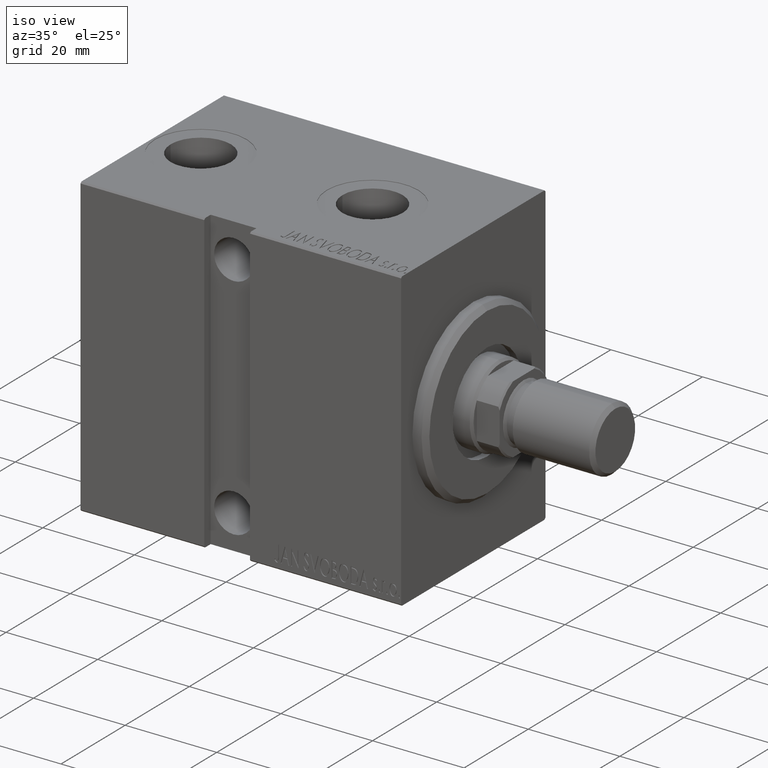
[diagram: clean part render]
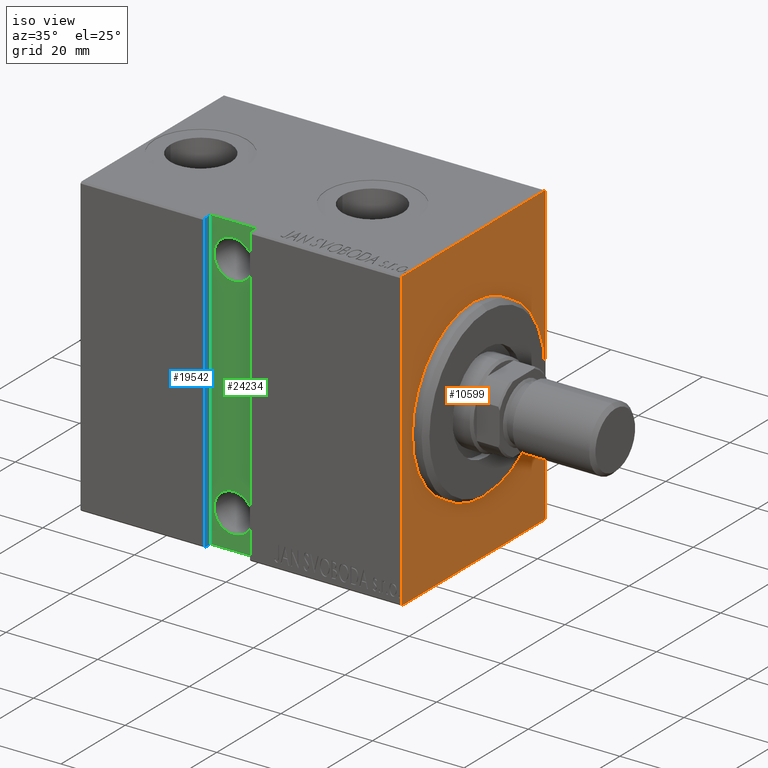
[diagram: same view with three faces highlighted in distinct colors, each labeled with its STEP entity id]
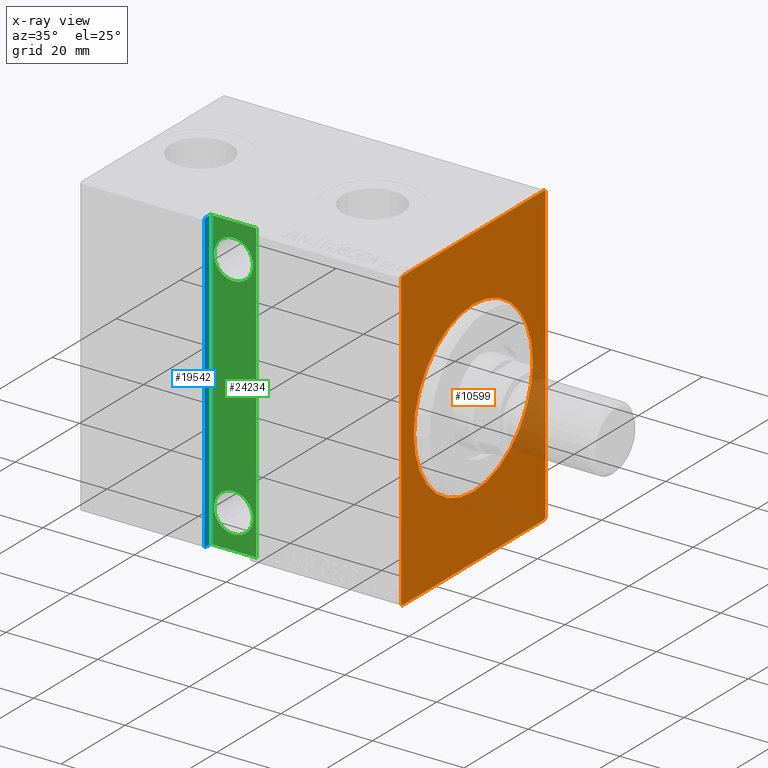
[diagram: x-ray of the same camera — body ghosted, the three highlighted faces saturated]
A machine part, iso view with three faces highlighted in distinct colors.
The next image is the same camera in x-ray (body ghosted, the three faces saturated) — at least one of them is partly hidden behind the body in this view.
Their STEP definitions:

[orange] entity #10599 — the highlighted planar face has unit normal (-1, 0, 0).
#201 = ORIENTED_EDGE ( 'NONE', *, *, #27090, .T. ) ;
#359 = EDGE_CURVE ( 'NONE', #29582, #11606, #31198, .T. ) ;
#487 = LINE ( 'NONE', #928, #33665 ) ;
#928 = CARTESIAN_POINT ( 'NONE',  ( 0.000000000000000000, 22.19999999999999929, 32.50000000000000711 ) ) ;
#1249 = CARTESIAN_POINT ( 'NONE',  ( 0.000000000000000000, -22.49999999999999645, 32.50000000000000000 ) ) ;
#2605 = DIRECTION ( 'NONE',  ( 1.000000000000000000, 0.000000000000000000, 0.000000000000000000 ) ) ;
#2924 = CARTESIAN_POINT ( 'NONE',  ( 0.000000000000000000, -22.19999999999999929, -32.50000000000000000 ) ) ;
#3171 = VECTOR ( 'NONE', #44215, 1000.000000000000000 ) ;
#4857 = LINE ( 'NONE', #1249, #43056 ) ;
#5313 = DIRECTION ( 'NONE',  ( 0.000000000000000000, 0.000000000000000000, -1.000000000000000000 ) ) ;
#5396 = DIRECTION ( 'NONE',  ( 0.000000000000000000, -1.000000000000000000, -1.541976423090495633E-16 ) ) ;
#5434 = EDGE_LOOP ( 'NONE', ( #32745, #20996 ) ) ;
#5547 = ORIENTED_EDGE ( 'NONE', *, *, #6178, .F. ) ;
#5917 = VERTEX_POINT ( 'NONE', #12224 ) ;
#6178 = EDGE_CURVE ( 'NONE', #38260, #32791, #29055, .T. ) ;
#8264 = ORIENTED_EDGE ( 'NONE', *, *, #24625, .F. ) ;
#8919 = CARTESIAN_POINT ( 'NONE',  ( 0.000000000000000000, 0.000000000000000000, 0.000000000000000000 ) ) ;
#9266 = CARTESIAN_POINT ( 'NONE',  ( 0.000000000000000000, 0.000000000000000000, 0.000000000000000000 ) ) ;
#10379 = CARTESIAN_POINT ( 'NONE',  ( 0.000000000000000000, 0.000000000000000000, 0.000000000000000000 ) ) ;
#10599 = ADVANCED_FACE ( 'NONE', ( #26483, #36853 ), #12523, .F. ) ;
#11606 = VERTEX_POINT ( 'NONE', #20013 ) ;
#12224 = CARTESIAN_POINT ( 'NONE',  ( 0.000000000000000000, 2.265596578422603791E-15, -18.50000000000000355 ) ) ;
#12523 = PLANE ( 'NONE',  #16838 ) ;
#14251 = DIRECTION ( 'NONE',  ( -0.000000000000000000, 0.7071067811865393571, -0.7071067811865556774 ) ) ;
#14630 = CARTESIAN_POINT ( 'NONE',  ( 0.000000000000000000, -22.49999999999999645, 32.20000000000000284 ) ) ;
#14748 = EDGE_CURVE ( 'NONE', #5917, #44620, #21711, .T. ) ;
#16141 = ORIENTED_EDGE ( 'NONE', *, *, #35734, .T. ) ;
#16720 = VERTEX_POINT ( 'NONE', #26341 ) ;
#16838 = AXIS2_PLACEMENT_3D ( 'NONE', #8919, #2605, #5313 ) ;
#17338 = CARTESIAN_POINT ( 'NONE',  ( 0.000000000000000000, 22.50000000000000355, -32.19999999999999574 ) ) ;
#17647 = CARTESIAN_POINT ( 'NONE',  ( 0.000000000000000000, -22.19999999999999929, -32.50000000000000000 ) ) ;
#17689 = DIRECTION ( 'NONE',  ( 0.000000000000000000, -0.7071067811865474617, -0.7071067811865474617 ) ) ;
#17920 = EDGE_CURVE ( 'NONE', #35893, #16720, #25073, .T. ) ;
#19615 = CARTESIAN_POINT ( 'NONE',  ( 0.000000000000000000, 22.49999999999999645, 32.20000000000000284 ) ) ;
#20013 = CARTESIAN_POINT ( 'NONE',  ( 0.000000000000000000, 22.19999999999998153, -32.50000000000000000 ) ) ;
#20304 = EDGE_CURVE ( 'NONE', #44620, #5917, #23273, .T. ) ;
#20740 = DIRECTION ( 'NONE',  ( 0.000000000000000000, 0.000000000000000000, -1.000000000000000000 ) ) ;
#20996 = ORIENTED_EDGE ( 'NONE', *, *, #14748, .T. ) ;
#21711 = CIRCLE ( 'NONE', #36821, 18.50000000000000355 ) ;
#21963 = ORIENTED_EDGE ( 'NONE', *, *, #359, .T. ) ;
#23197 = LINE ( 'NONE', #44167, #35668 ) ;
#23273 = CIRCLE ( 'NONE', #44168, 18.50000000000000355 ) ;
#23673 = DIRECTION ( 'NONE',  ( 1.000000000000000000, 0.000000000000000000, 0.000000000000000000 ) ) ;
#23761 = CARTESIAN_POINT ( 'NONE',  ( 0.000000000000000000, 0.000000000000000000, 18.50000000000000355 ) ) ;
#24625 = EDGE_CURVE ( 'NONE', #35893, #11606, #37671, .T. ) ;
#25073 = LINE ( 'NONE', #17647, #43377 ) ;
#25366 = CARTESIAN_POINT ( 'NONE',  ( 0.000000000000000000, -22.19999999999998863, 32.50000000000000000 ) ) ;
#25502 = DIRECTION ( 'NONE',  ( -0.000000000000000000, -0.7071067811865474617, 0.7071067811865474617 ) ) ;
#26341 = CARTESIAN_POINT ( 'NONE',  ( 0.000000000000000000, -22.49999999999999645, -32.20000000000000284 ) ) ;
#26483 = FACE_BOUND ( 'NONE', #5434, .T. ) ;
#27090 = EDGE_CURVE ( 'NONE', #34431, #32791, #28145, .T. ) ;
#28145 = LINE ( 'NONE', #14630, #30567 ) ;
#29055 = LINE ( 'NONE', #42606, #43118 ) ;
#29534 = EDGE_CURVE ( 'NONE', #29582, #39632, #23197, .T. ) ;
#29582 = VERTEX_POINT ( 'NONE', #17338 ) ;
#30567 = VECTOR ( 'NONE', #38289, 1000.000000000000114 ) ;
#30765 = CARTESIAN_POINT ( 'NONE',  ( 0.000000000000000000, 22.19999999999999929, 32.50000000000000711 ) ) ;
#30898 = CARTESIAN_POINT ( 'NONE',  ( 0.000000000000000000, -22.49999999999999645, -32.50000000000000000 ) ) ;
#30970 = CARTESIAN_POINT ( 'NONE',  ( 0.000000000000000000, 22.50000000000000355, -32.19999999999999574 ) ) ;
#31198 = LINE ( 'NONE', #30970, #32805 ) ;
#32745 = ORIENTED_EDGE ( 'NONE', *, *, #20304, .T. ) ;
#32791 = VERTEX_POINT ( 'NONE', #25366 ) ;
#32805 = VECTOR ( 'NONE', #17689, 1000.000000000000114 ) ;
#33665 = VECTOR ( 'NONE', #14251, 1000.000000000000000 ) ;
#34431 = VERTEX_POINT ( 'NONE', #40884 ) ;
#35668 = VECTOR ( 'NONE', #40339, 1000.000000000000000 ) ;
#35734 = EDGE_CURVE ( 'NONE', #38260, #39632, #487, .T. ) ;
#35893 = VERTEX_POINT ( 'NONE', #2924 ) ;
#36821 = AXIS2_PLACEMENT_3D ( 'NONE', #10379, #23673, #20740 ) ;
#36836 = ORIENTED_EDGE ( 'NONE', *, *, #17920, .T. ) ;
#36853 = FACE_OUTER_BOUND ( 'NONE', #39697, .T. ) ;
#37671 = LINE ( 'NONE', #30898, #3171 ) ;
#38260 = VERTEX_POINT ( 'NONE', #30765 ) ;
#38289 = DIRECTION ( 'NONE',  ( -0.000000000000000000, 0.7071067811865474617, 0.7071067811865474617 ) ) ;
#39632 = VERTEX_POINT ( 'NONE', #19615 ) ;
#39697 = EDGE_LOOP ( 'NONE', ( #5547, #16141, #41524, #21963, #8264, #36836, #40064, #201 ) ) ;
#40064 = ORIENTED_EDGE ( 'NONE', *, *, #41229, .F. ) ;
#40339 = DIRECTION ( 'NONE',  ( 0.000000000000000000, -1.067522139062650425E-16, 1.000000000000000000 ) ) ;
#40884 = CARTESIAN_POINT ( 'NONE',  ( 0.000000000000000000, -22.49999999999999645, 32.20000000000000284 ) ) ;
#41229 = EDGE_CURVE ( 'NONE', #34431, #16720, #4857, .T. ) ;
#41524 = ORIENTED_EDGE ( 'NONE', *, *, #29534, .F. ) ;
#42606 = CARTESIAN_POINT ( 'NONE',  ( 0.000000000000000000, 22.49999999999999645, 32.50000000000000711 ) ) ;
#42936 = DIRECTION ( 'NONE',  ( 0.000000000000000000, 0.000000000000000000, -1.000000000000000000 ) ) ;
#43056 = VECTOR ( 'NONE', #42936, 1000.000000000000000 ) ;
#43118 = VECTOR ( 'NONE', #5396, 1000.000000000000000 ) ;
#43377 = VECTOR ( 'NONE', #25502, 1000.000000000000114 ) ;
#43967 = DIRECTION ( 'NONE',  ( 1.000000000000000000, 0.000000000000000000, 0.000000000000000000 ) ) ;
#44167 = CARTESIAN_POINT ( 'NONE',  ( 0.000000000000000000, 22.50000000000000355, -32.50000000000000000 ) ) ;
#44168 = AXIS2_PLACEMENT_3D ( 'NONE', #9266, #43967, #44418 ) ;
#44215 = DIRECTION ( 'NONE',  ( 0.000000000000000000, 1.000000000000000000, 0.000000000000000000 ) ) ;
#44418 = DIRECTION ( 'NONE',  ( 0.000000000000000000, 0.000000000000000000, -1.000000000000000000 ) ) ;
#44620 = VERTEX_POINT ( 'NONE', #23761 ) ;

[blue] entity #19542 — the highlighted planar face has unit normal (-1, 0, -0).
#980 = DIRECTION ( 'NONE',  ( 1.000000000000000000, 0.000000000000000000, -1.067522139062651164E-16 ) ) ;
#1187 = CARTESIAN_POINT ( 'NONE',  ( 43.00000000000000000, 22.19999999999999574, -32.50000000000000000 ) ) ;
#2451 = ORIENTED_EDGE ( 'NONE', *, *, #21827, .T. ) ;
#4180 = VECTOR ( 'NONE', #42928, 1000.000000000000114 ) ;
#4372 = FACE_OUTER_BOUND ( 'NONE', #29575, .T. ) ;
#4538 = VERTEX_POINT ( 'NONE', #23342 ) ;
#4584 = DIRECTION ( 'NONE',  ( -1.067522139062651164E-16, -0.000000000000000000, -1.000000000000000000 ) ) ;
#5823 = ORIENTED_EDGE ( 'NONE', *, *, #24443, .F. ) ;
#6940 = DIRECTION ( 'NONE',  ( -0.000000000000000000, 1.000000000000000000, -0.000000000000000000 ) ) ;
#7287 = VERTEX_POINT ( 'NONE', #9174 ) ;
#7713 = VERTEX_POINT ( 'NONE', #7974 ) ;
#7974 = CARTESIAN_POINT ( 'NONE',  ( 43.00000000000000711, 22.50000000000000000, 32.20000000000000284 ) ) ;
#8475 = DIRECTION ( 'NONE',  ( -0.000000000000000000, 1.000000000000000000, -0.000000000000000000 ) ) ;
#9058 = CARTESIAN_POINT ( 'NONE',  ( 43.00000000000000711, 20.49999999999999645, 32.49999999999995737 ) ) ;
#9174 = CARTESIAN_POINT ( 'NONE',  ( 43.00000000000000000, 22.50000000000000000, -32.19999999999999574 ) ) ;
#9265 = DIRECTION ( 'NONE',  ( -1.067522139062651164E-16, -0.000000000000000000, -1.000000000000000000 ) ) ;
#9335 = LINE ( 'NONE', #43143, #4180 ) ;
#11367 = LINE ( 'NONE', #38843, #32634 ) ;
#11632 = DIRECTION ( 'NONE',  ( -7.548521435979779371E-17, 0.7071067811865393571, -0.7071067811865556774 ) ) ;
#14957 = DIRECTION ( 'NONE',  ( -1.067522139062651164E-16, 0.000000000000000000, -1.000000000000000000 ) ) ;
#18012 = ORIENTED_EDGE ( 'NONE', *, *, #32740, .F. ) ;
#18104 = PLANE ( 'NONE',  #29725 ) ;
#18775 = VERTEX_POINT ( 'NONE', #1187 ) ;
#18825 = LINE ( 'NONE', #35308, #22761 ) ;
#19542 = ADVANCED_FACE ( 'NONE', ( #4372 ), #18104, .F. ) ;
#19612 = CARTESIAN_POINT ( 'NONE',  ( 43.00000000000000711, 20.50000000000000000, -32.50000000000000000 ) ) ;
#19845 = EDGE_CURVE ( 'NONE', #28272, #4538, #40977, .T. ) ;
#21827 = EDGE_CURVE ( 'NONE', #4538, #7713, #42721, .T. ) ;
#21864 = VECTOR ( 'NONE', #6940, 1000.000000000000000 ) ;
#22761 = VECTOR ( 'NONE', #8475, 1000.000000000000000 ) ;
#23342 = CARTESIAN_POINT ( 'NONE',  ( 43.00000000000000711, 22.19999999999999929, 32.49999999999995737 ) ) ;
#23831 = CARTESIAN_POINT ( 'NONE',  ( 43.00000000000000711, 20.49999999999999645, 32.49999999999995737 ) ) ;
#24443 = EDGE_CURVE ( 'NONE', #28272, #44055, #11367, .T. ) ;
#27465 = ORIENTED_EDGE ( 'NONE', *, *, #19845, .T. ) ;
#28272 = VERTEX_POINT ( 'NONE', #9058 ) ;
#29575 = EDGE_LOOP ( 'NONE', ( #34711, #32244, #18012, #5823, #27465, #2451 ) ) ;
#29725 = AXIS2_PLACEMENT_3D ( 'NONE', #31843, #980, #14957 ) ;
#29793 = VECTOR ( 'NONE', #11632, 1000.000000000000000 ) ;
#31843 = CARTESIAN_POINT ( 'NONE',  ( 43.00000000000000000, 20.49999999999999645, -32.50000000000000000 ) ) ;
#32244 = ORIENTED_EDGE ( 'NONE', *, *, #39343, .T. ) ;
#32634 = VECTOR ( 'NONE', #4584, 1000.000000000000000 ) ;
#32740 = EDGE_CURVE ( 'NONE', #44055, #18775, #18825, .T. ) ;
#34711 = ORIENTED_EDGE ( 'NONE', *, *, #39680, .T. ) ;
#35118 = VECTOR ( 'NONE', #9265, 1000.000000000000000 ) ;
#35308 = CARTESIAN_POINT ( 'NONE',  ( 43.00000000000000000, 20.49999999999999645, -32.50000000000000000 ) ) ;
#38843 = CARTESIAN_POINT ( 'NONE',  ( 43.00000000000000000, 20.49999999999999645, -32.50000000000000000 ) ) ;
#39329 = CARTESIAN_POINT ( 'NONE',  ( 43.00000000000000711, 22.19999999999999929, 32.50000000000000711 ) ) ;
#39343 = EDGE_CURVE ( 'NONE', #7287, #18775, #9335, .T. ) ;
#39680 = EDGE_CURVE ( 'NONE', #7713, #7287, #40131, .T. ) ;
#40131 = LINE ( 'NONE', #44191, #35118 ) ;
#40977 = LINE ( 'NONE', #23831, #21864 ) ;
#42721 = LINE ( 'NONE', #39329, #29793 ) ;
#42928 = DIRECTION ( 'NONE',  ( -7.548521435979691857E-17, -0.7071067811865474617, -0.7071067811865474617 ) ) ;
#43143 = CARTESIAN_POINT ( 'NONE',  ( 43.00000000000000000, 22.50000000000000355, -32.19999999999999574 ) ) ;
#44055 = VERTEX_POINT ( 'NONE', #19612 ) ;
#44191 = CARTESIAN_POINT ( 'NONE',  ( 43.00000000000000000, 22.50000000000000000, -32.50000000000000000 ) ) ;

[green] entity #24234 — the highlighted planar face has unit normal (0, 1, 0).
#65 = EDGE_CURVE ( 'NONE', #7873, #28272, #34030, .T. ) ;
#641 = FACE_OUTER_BOUND ( 'NONE', #16804, .T. ) ;
#1885 = CARTESIAN_POINT ( 'NONE',  ( 38.00000000000001421, 20.49999999999999645, -25.00000000000000000 ) ) ;
#2175 = CARTESIAN_POINT ( 'NONE',  ( 38.00000000000001421, 20.49999999999999645, -20.75000000000000355 ) ) ;
#2338 = DIRECTION ( 'NONE',  ( 0.000000000000000000, 0.000000000000000000, -1.000000000000000000 ) ) ;
#2769 = EDGE_CURVE ( 'NONE', #42945, #41012, #39338, .T. ) ;
#3158 = CARTESIAN_POINT ( 'NONE',  ( 43.00000000000000711, 20.49999999999999645, 32.49999999999995737 ) ) ;
#4584 = DIRECTION ( 'NONE',  ( -1.067522139062651164E-16, -0.000000000000000000, -1.000000000000000000 ) ) ;
#5821 = DIRECTION ( 'NONE',  ( 0.000000000000000000, -1.000000000000000000, 0.000000000000000000 ) ) ;
#7629 = FACE_BOUND ( 'NONE', #9018, .T. ) ;
#7873 = VERTEX_POINT ( 'NONE', #20314 ) ;
#8096 = DIRECTION ( 'NONE',  ( -1.000000000000000000, 0.000000000000000000, 0.000000000000000000 ) ) ;
#8243 = CARTESIAN_POINT ( 'NONE',  ( 38.00000000000001421, 20.49999999999999645, -25.00000000000000000 ) ) ;
#8699 = VERTEX_POINT ( 'NONE', #16728 ) ;
#8928 = AXIS2_PLACEMENT_3D ( 'NONE', #9551, #43584, #2338 ) ;
#9018 = EDGE_LOOP ( 'NONE', ( #36242, #30001 ) ) ;
#9058 = CARTESIAN_POINT ( 'NONE',  ( 43.00000000000000711, 20.49999999999999645, 32.49999999999995737 ) ) ;
#9091 = AXIS2_PLACEMENT_3D ( 'NONE', #1885, #12477, #39530 ) ;
#9551 = CARTESIAN_POINT ( 'NONE',  ( 38.00000000000001421, 20.49999999999999645, 25.00000000000000000 ) ) ;
#10338 = PLANE ( 'NONE',  #11768 ) ;
#10796 = CARTESIAN_POINT ( 'NONE',  ( 0.000000000000000000, 20.49999999999999645, 0.000000000000000000 ) ) ;
#11367 = LINE ( 'NONE', #38843, #32634 ) ;
#11768 = AXIS2_PLACEMENT_3D ( 'NONE', #10796, #31280, #24079 ) ;
#11849 = DIRECTION ( 'NONE',  ( 0.000000000000000000, -1.000000000000000000, 0.000000000000000000 ) ) ;
#12477 = DIRECTION ( 'NONE',  ( 0.000000000000000000, -1.000000000000000000, 0.000000000000000000 ) ) ;
#13535 = DIRECTION ( 'NONE',  ( 1.000000000000000000, -0.000000000000000000, -0.000000000000000000 ) ) ;
#13955 = CARTESIAN_POINT ( 'NONE',  ( 33.00000000000000711, 20.49999999999999645, -32.50000000000000000 ) ) ;
#14099 = VECTOR ( 'NONE', #13535, 1000.000000000000000 ) ;
#14465 = VERTEX_POINT ( 'NONE', #30958 ) ;
#15659 = DIRECTION ( 'NONE',  ( 0.000000000000000000, 0.000000000000000000, -1.000000000000000000 ) ) ;
#16146 = CIRCLE ( 'NONE', #8928, 4.249999999999996447 ) ;
#16728 = CARTESIAN_POINT ( 'NONE',  ( 38.00000000000001421, 20.49999999999999645, 29.25000000000000000 ) ) ;
#16804 = EDGE_LOOP ( 'NONE', ( #21580, #20596, #21413, #36346 ) ) ;
#16934 = ORIENTED_EDGE ( 'NONE', *, *, #2769, .T. ) ;
#16957 = EDGE_CURVE ( 'NONE', #38443, #7873, #17113, .T. ) ;
#17113 = LINE ( 'NONE', #13955, #23173 ) ;
#17871 = AXIS2_PLACEMENT_3D ( 'NONE', #8243, #11849, #15659 ) ;
#18580 = CARTESIAN_POINT ( 'NONE',  ( 33.00000000000000711, 20.49999999999999645, -32.50000000000000000 ) ) ;
#19569 = DIRECTION ( 'NONE',  ( 0.000000000000000000, 0.000000000000000000, -1.000000000000000000 ) ) ;
#19612 = CARTESIAN_POINT ( 'NONE',  ( 43.00000000000000711, 20.50000000000000000, -32.50000000000000000 ) ) ;
#20314 = CARTESIAN_POINT ( 'NONE',  ( 33.00000000000001421, 20.49999999999999645, 32.49999999999995737 ) ) ;
#20409 = AXIS2_PLACEMENT_3D ( 'NONE', #22944, #5821, #19569 ) ;
#20596 = ORIENTED_EDGE ( 'NONE', *, *, #65, .T. ) ;
#20652 = EDGE_CURVE ( 'NONE', #8699, #14465, #39840, .T. ) ;
#21121 = EDGE_CURVE ( 'NONE', #14465, #8699, #16146, .T. ) ;
#21413 = ORIENTED_EDGE ( 'NONE', *, *, #24443, .T. ) ;
#21580 = ORIENTED_EDGE ( 'NONE', *, *, #16957, .T. ) ;
#22944 = CARTESIAN_POINT ( 'NONE',  ( 38.00000000000001421, 20.49999999999999645, 25.00000000000000000 ) ) ;
#23173 = VECTOR ( 'NONE', #37834, 1000.000000000000000 ) ;
#24079 = DIRECTION ( 'NONE',  ( 0.000000000000000000, -0.000000000000000000, -1.000000000000000000 ) ) ;
#24234 = ADVANCED_FACE ( 'NONE', ( #7629, #31505, #641 ), #10338, .F. ) ;
#24443 = EDGE_CURVE ( 'NONE', #28272, #44055, #11367, .T. ) ;
#27945 = LINE ( 'NONE', #41702, #38761 ) ;
#28272 = VERTEX_POINT ( 'NONE', #9058 ) ;
#30001 = ORIENTED_EDGE ( 'NONE', *, *, #21121, .T. ) ;
#30958 = CARTESIAN_POINT ( 'NONE',  ( 38.00000000000001421, 20.49999999999999645, 20.75000000000000355 ) ) ;
#31280 = DIRECTION ( 'NONE',  ( 0.000000000000000000, -1.000000000000000000, 0.000000000000000000 ) ) ;
#31505 = FACE_BOUND ( 'NONE', #39089, .T. ) ;
#32634 = VECTOR ( 'NONE', #4584, 1000.000000000000000 ) ;
#34030 = LINE ( 'NONE', #3158, #14099 ) ;
#35268 = CARTESIAN_POINT ( 'NONE',  ( 38.00000000000001421, 20.49999999999999645, -29.25000000000000000 ) ) ;
#36242 = ORIENTED_EDGE ( 'NONE', *, *, #20652, .T. ) ;
#36346 = ORIENTED_EDGE ( 'NONE', *, *, #37008, .T. ) ;
#37008 = EDGE_CURVE ( 'NONE', #44055, #38443, #27945, .T. ) ;
#37834 = DIRECTION ( 'NONE',  ( 1.067522139062651164E-16, 0.000000000000000000, 1.000000000000000000 ) ) ;
#38443 = VERTEX_POINT ( 'NONE', #18580 ) ;
#38761 = VECTOR ( 'NONE', #8096, 1000.000000000000000 ) ;
#38843 = CARTESIAN_POINT ( 'NONE',  ( 43.00000000000000000, 20.49999999999999645, -32.50000000000000000 ) ) ;
#39089 = EDGE_LOOP ( 'NONE', ( #44117, #16934 ) ) ;
#39338 = CIRCLE ( 'NONE', #9091, 4.249999999999996447 ) ;
#39530 = DIRECTION ( 'NONE',  ( 0.000000000000000000, 0.000000000000000000, -1.000000000000000000 ) ) ;
#39840 = CIRCLE ( 'NONE', #20409, 4.249999999999996447 ) ;
#41012 = VERTEX_POINT ( 'NONE', #2175 ) ;
#41167 = EDGE_CURVE ( 'NONE', #41012, #42945, #44513, .T. ) ;
#41702 = CARTESIAN_POINT ( 'NONE',  ( 43.00000000000000000, 20.49999999999999645, -32.50000000000000000 ) ) ;
#42945 = VERTEX_POINT ( 'NONE', #35268 ) ;
#43584 = DIRECTION ( 'NONE',  ( 0.000000000000000000, -1.000000000000000000, 0.000000000000000000 ) ) ;
#44055 = VERTEX_POINT ( 'NONE', #19612 ) ;
#44117 = ORIENTED_EDGE ( 'NONE', *, *, #41167, .T. ) ;
#44513 = CIRCLE ( 'NONE', #17871, 4.249999999999996447 ) ;